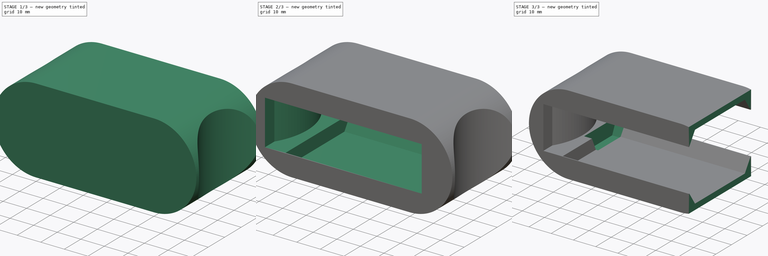
[diagram: build sequence overview — one tinted view per stage of 3, left to right]
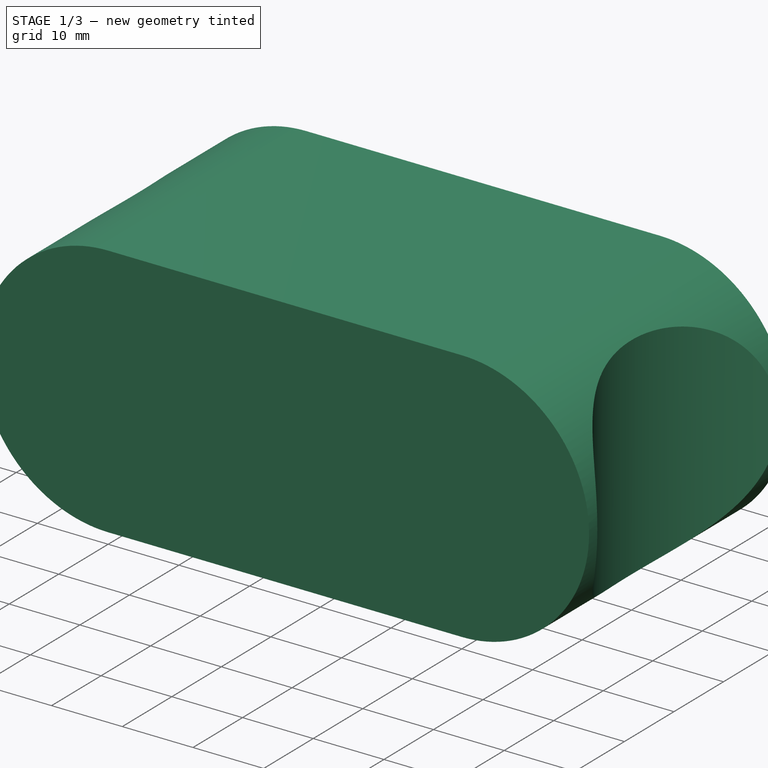
[diagram: stage 1 of 3 — iso view after this stage's code; geometry added in this stage tinted green]
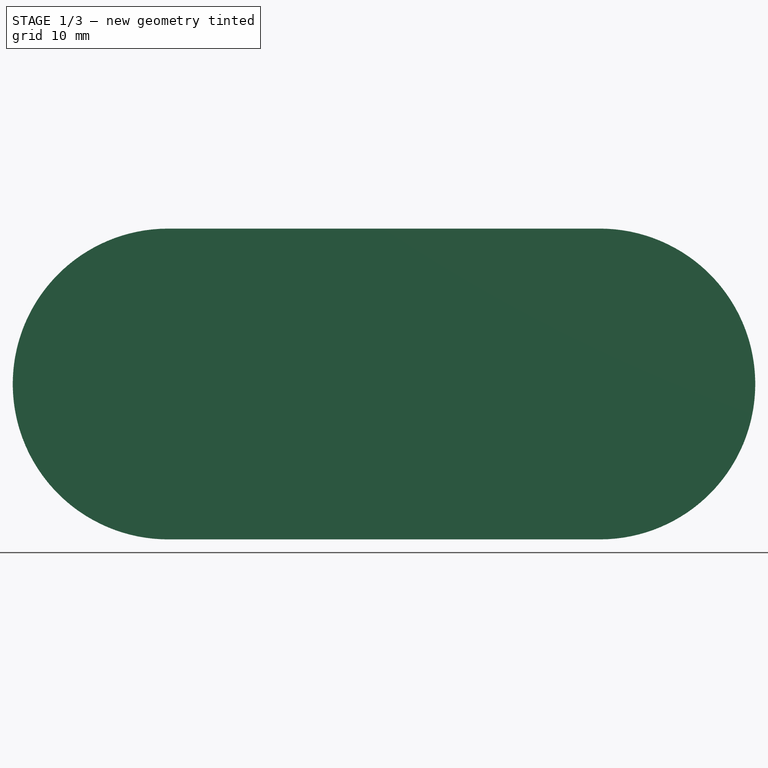
[diagram: stage 1 of 3 — front view after this stage's code; geometry added in this stage tinted green]
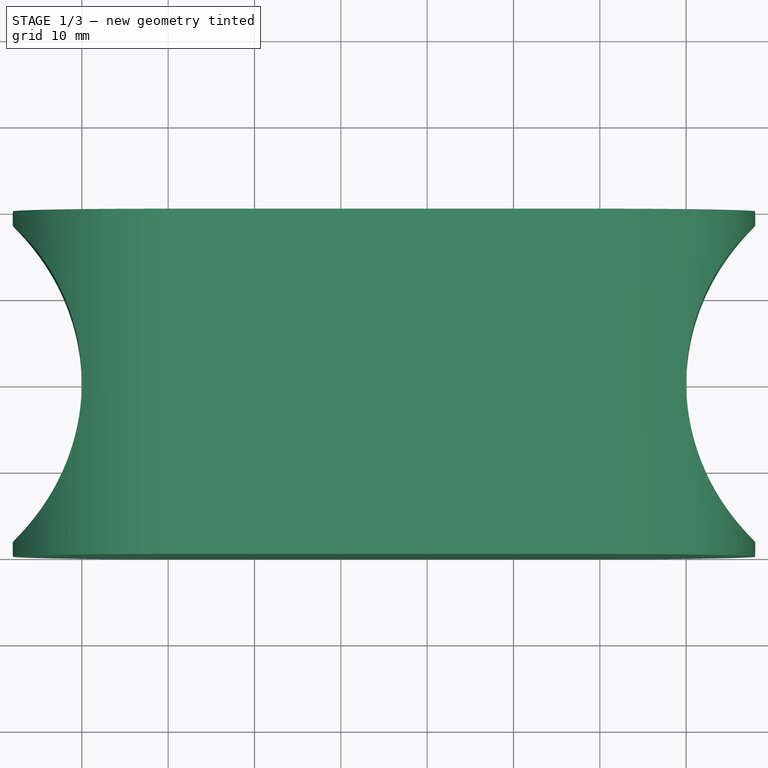
[diagram: stage 1 of 3 — top view after this stage's code; geometry added in this stage tinted green]
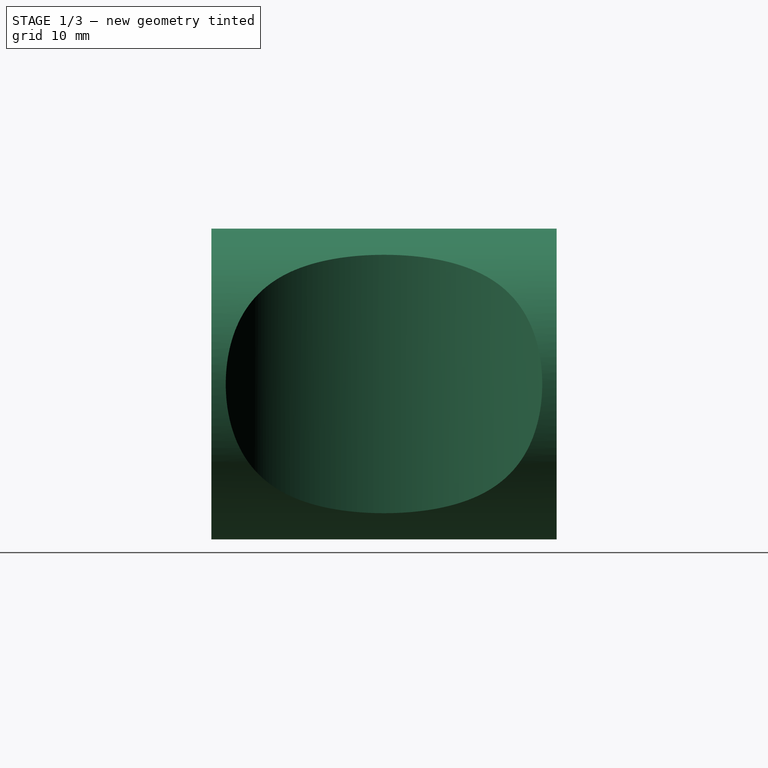
[diagram: stage 1 of 3 — right view after this stage's code; geometry added in this stage tinted green]
FCSTD DOCUMENT  (FreeCAD 0.21R33668 +7 (Git))
Label: robot-body
License: All rights reserved
LicenseURL: https://en.wikipedia.org/wiki/All_rights_reserved
objects: Sketcher::SketchObject×7, PartDesign::Pocket×5, PartDesign::Plane×3, PartDesign::Pad×1, PartDesign::Body×1
note: 23 computed .brp shape members not serialized (recipe doc carries the construction recipe); baked Part::Feature solids carry a one-line shape summary decoded from their .brp

FEATURE [Sketcher::SketchObject] Sketch
  FullyConstrained = true
  MapMode = 5
  Placement = pos=(0,0,0) rot=(1,0,0;1.5708rad)
  Support = -> [XZ_Plane]
  sketch-geometry (4):
    g0: ArcOfCircle CenterX=0 CenterY=0 CenterZ=0 NormalX=0 NormalY=0 NormalZ=1 AngleXU=0 Radius=18 StartAngle=1.5708 EndAngle=4.71239
    g1: ArcOfCircle CenterX=50 CenterY=0 CenterZ=0 NormalX=0 NormalY=0 NormalZ=1 AngleXU=0 Radius=18 StartAngle=4.71239 EndAngle=7.85398
    g2: LineSegment StartX=1.1e-15 StartY=18 StartZ=0 EndX=50 EndY=18 EndZ=0
    g3: LineSegment StartX=0 StartY=-18 StartZ=0 EndX=50 EndY=-18 EndZ=0
  constraints (9):
    c: Coincident(g0,g-1)
    c: PointOnObject(g0,g-2)
    c: PointOnObject(g1,g-1)
    c: Tangent(g3,g0) = -1.5708
    c: Tangent(g2,g0) = 1.5708
    c: Tangent(g2,g1) = 1.5708
    c: Tangent(g3,g1) = -1.5708
    c: DistanceX(g0,g1) = 50
    c: Diameter(g0) = 36
FEATURE [PartDesign::Pad] Pad
  Direction = (0,-1,-2e-16)
  Length = 40
  Length2 = 10
  Midplane = true
  Placement = pos=(0,0,0) rot=(1,0,0;1.5708rad)
  Profile = -> Sketch
  ReferenceAxis = -> Sketch [N_Axis]
  Type = 0
FEATURE [Sketcher::SketchObject] Sketch001
  FullyConstrained = true
  MapMode = 5
  Support = -> [XY_Plane]
  sketch-geometry (2):
    g0: Circle CenterX=-35 CenterY=0 CenterZ=0 NormalX=0 NormalY=0 NormalZ=1 AngleXU=0 Radius=25
    g1: Circle CenterX=85 CenterY=0 CenterZ=0 NormalX=0 NormalY=0 NormalZ=1 AngleXU=0 Radius=25
  constraints (6):
    c: PointOnObject(g0,g-1)
    c: PointOnObject(g1,g-1)
    c: Equal(g1,g0)
    c: DistanceX(g0,g-1) = 35
    c: DistanceX(g-1,g1) = 85
    c: Diameter(g0) = 50
FEATURE [PartDesign::Pocket] Pocket
  BaseFeature = -> Pad
  Direction = (0,0,-1)
  Length = 5
  Length2 = 5
  Midplane = true
  Placement = pos=(0,0,0) rot=(1,0,0;1.5708rad)
  Profile = -> Sketch001
  ReferenceAxis = -> Sketch001 [N_Axis]
  Type = 1
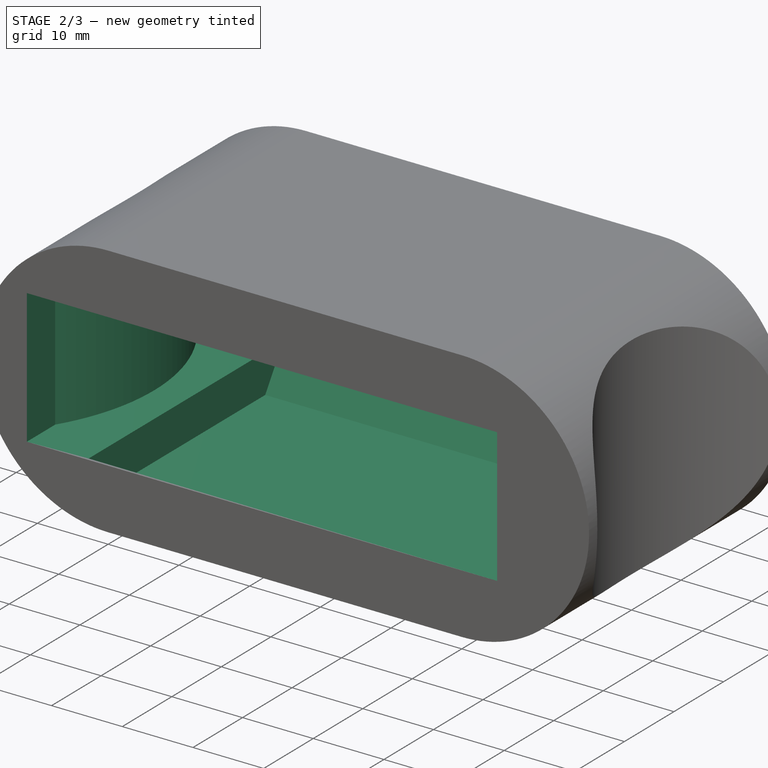
[diagram: stage 2 of 3 — iso view after this stage's code; geometry added in this stage tinted green]
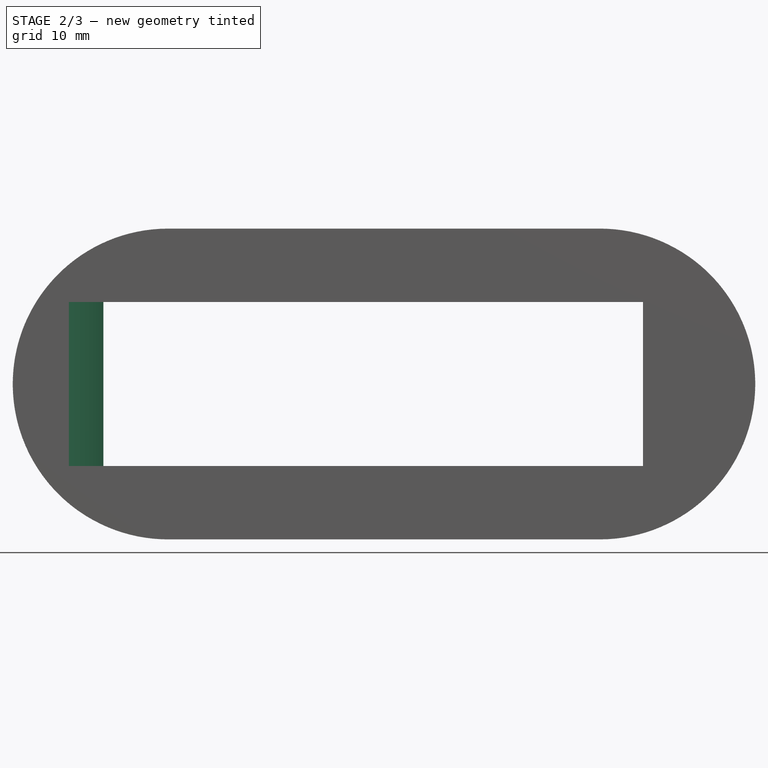
[diagram: stage 2 of 3 — front view after this stage's code; geometry added in this stage tinted green]
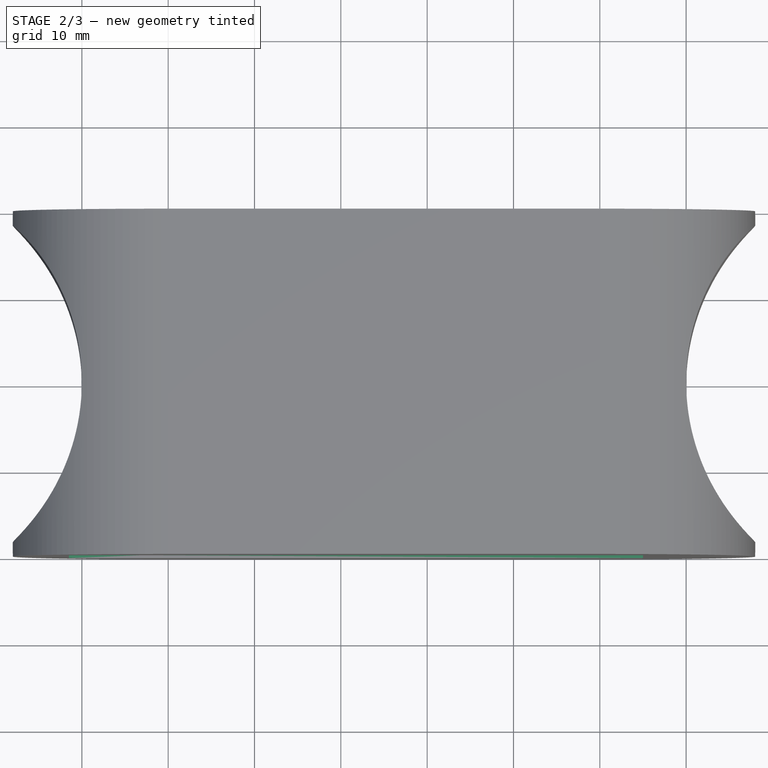
[diagram: stage 2 of 3 — top view after this stage's code; geometry added in this stage tinted green]
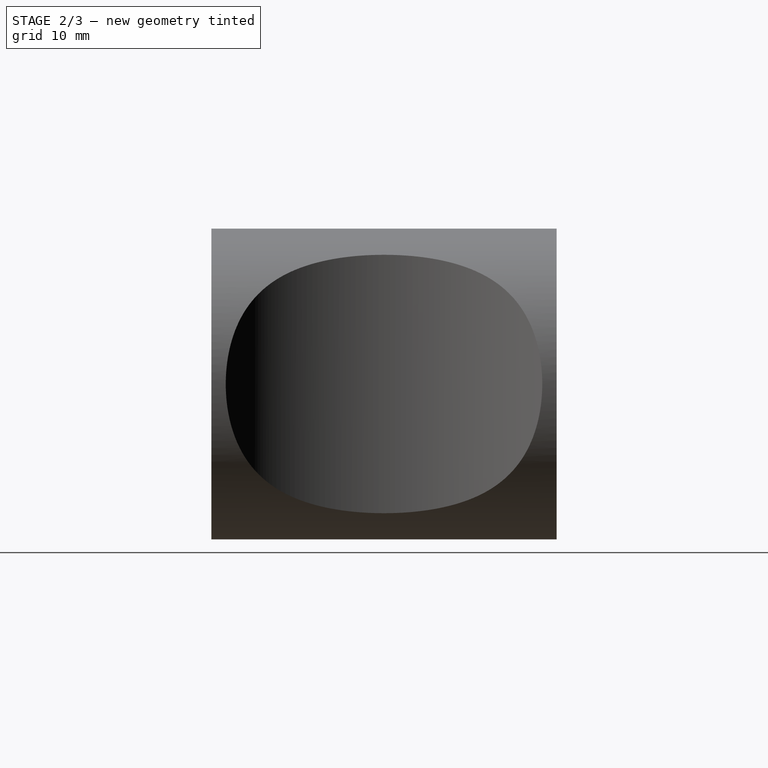
[diagram: stage 2 of 3 — right view after this stage's code; geometry added in this stage tinted green]
FEATURE [PartDesign::Plane] DatumPlane
  Length = 106.638
  MapMode = 5
  ResizeMode = 0
  Support = -> [XY_Plane]
  Width = 63.6382
FEATURE [Sketcher::SketchObject] Sketch002
  FullyConstrained = true
  MapMode = 5
  Support = -> [DatumPlane]
  sketch-geometry (7):
    g0: ArcOfCircle CenterX=-35 CenterY=0 CenterZ=0 NormalX=0 NormalY=0 NormalZ=1 AngleXU=0 Radius=27.5 StartAngle=5.73706 EndAngle=6.82931
    g1: LineSegment StartX=-11.5 StartY=20 StartZ=0 EndX=55 EndY=20 EndZ=0
    g2: LineSegment StartX=-11.5 StartY=-20 StartZ=0 EndX=55 EndY=-20 EndZ=0
    g3: LineSegment StartX=-11.5 StartY=20 StartZ=0 EndX=-11.5 EndY=14.2829 EndZ=0
    g4: LineSegment StartX=-11.5 StartY=-14.2829 StartZ=0 EndX=-11.5 EndY=-20 EndZ=0
    g5: LineSegment StartX=55 StartY=20 StartZ=0 EndX=55 EndY=-20 EndZ=0
    g6: LineSegment StartX=-7.5 StartY=20 StartZ=0 EndX=-7.5 EndY=-20 EndZ=0
  constraints (23):
    c: PointOnObject(g0,g-1)
    c: Horizontal(g1)
    c: Horizontal(g2)
    c: Coincident(g3,g1)
    c: Coincident(g3,g0)
    c: Vertical(g3)
    c: Coincident(g4,g0)
    c: Coincident(g4,g2)
    c: Vertical(g4)
    c: Coincident(g5,g1)
    c: Coincident(g5,g2)
    c: Vertical(g5)
    c: Equal(g3,g4)
    c: DistanceY(g2,g1) = 40
    c: DistanceX(g-1,g1) = 55
    c: PointOnObject(g6,g1)
    c: PointOnObject(g6,g2)
    c: Vertical(g6)
    c: Tangent(g6,g0)
    c: DistanceX(g1,g6) = 4
    c: Equal(g2,g1)
    c: Radius(g0) = 27.5
    c: DistanceX(g0,g-1) = 35
FEATURE [PartDesign::Pocket] Pocket001
  BaseFeature = -> Pocket
  Direction = (0,0,-1)
  Length = 19
  Length2 = 5
  Midplane = true
  Placement = pos=(0,0,0) rot=(1,0,0;1.5708rad)
  Profile = -> Sketch002
  ReferenceAxis = -> Sketch002 [N_Axis]
  Type = 0
FEATURE [PartDesign::Plane] DatumPlane001
  Length = 60
  MapMode = 5
  Placement = pos=(0,0,0) rot=(0.57735,0.57735,0.57735;2.0944rad)
  ResizeMode = 0
  Support = -> [YZ_Plane]
  Width = 60
FEATURE [Sketcher::SketchObject] Sketch003
  FullyConstrained = true
  MapMode = 5
  Placement = pos=(0,0,0) rot=(0.57735,0.57735,0.57735;2.0944rad)
  Support = -> [DatumPlane001]
  sketch-geometry (12):
    g0: LineSegment StartX=-20 StartY=9 StartZ=0 EndX=-16 EndY=15 EndZ=0
    g1: LineSegment StartX=-16 StartY=15 StartZ=0 EndX=16 EndY=15 EndZ=0
    g2: LineSegment StartX=16 StartY=15 StartZ=0 EndX=20 EndY=9 EndZ=0
    g3: LineSegment StartX=20 StartY=9 StartZ=0 EndX=20 EndY=-9 EndZ=0
    g4: LineSegment StartX=20 StartY=-9 StartZ=0 EndX=16 EndY=-15 EndZ=0
    g5: LineSegment StartX=16 StartY=-15 StartZ=0 EndX=-16 EndY=-15 EndZ=0
    g6: LineSegment StartX=-16 StartY=-15 StartZ=0 EndX=-20 EndY=-9 EndZ=0
    g7: LineSegment StartX=-20 StartY=-9 StartZ=0 EndX=-20 EndY=9 EndZ=0
    g8: LineSegment StartX=-16 StartY=15 StartZ=0 EndX=-16 EndY=-15 EndZ=0
    g9: LineSegment StartX=16 StartY=15 StartZ=0 EndX=16 EndY=-15 EndZ=0
    g10: LineSegment StartX=-20 StartY=9 StartZ=0 EndX=20 EndY=9 EndZ=0
    g11: LineSegment StartX=-20 StartY=-9 StartZ=0 EndX=20 EndY=-9 EndZ=0
  constraints (30):
    c: Coincident(g0,g1)
    c: Horizontal(g1)
    c: Coincident(g1,g2)
    c: Coincident(g2,g3)
    c: Vertical(g3)
    c: Coincident(g3,g4)
    c: Coincident(g4,g5)
    c: Horizontal(g5)
    c: Coincident(g5,g6)
    c: Coincident(g6,g7)
    c: Coincident(g7,g0)
    c: Vertical(g7)
    c: Coincident(g8,g0)
    c: Coincident(g8,g5)
    c: Vertical(g8)
    c: Coincident(g9,g1)
    c: Coincident(g9,g4)
    c: Vertical(g9)
    c: Coincident(g10,g0)
    c: Coincident(g10,g2)
    c: Horizontal(g10)
    c: Coincident(g11,g6)
    c: Coincident(g11,g3)
    c: Horizontal(g11)
    c: DistanceX(g10,g10) = 40
    c: Symmetric(g0,g3,g-1)
    c: Symmetric(g1,g5,g-1)
    c: DistanceY(g4,g1) = 30
    c: DistanceX(g5,g5) = 32
    c: DistanceY(g3,g3) = 18
FEATURE [PartDesign::Pocket] Pocket002
  BaseFeature = -> Pocket001
  Direction = (-1,1e-16,-1e-16)
  Length = 3
  Length2 = 55
  Placement = pos=(0,0,0) rot=(1,0,0;1.5708rad)
  Profile = -> Sketch003
  ReferenceAxis = -> Sketch003 [N_Axis]
  Type = 4
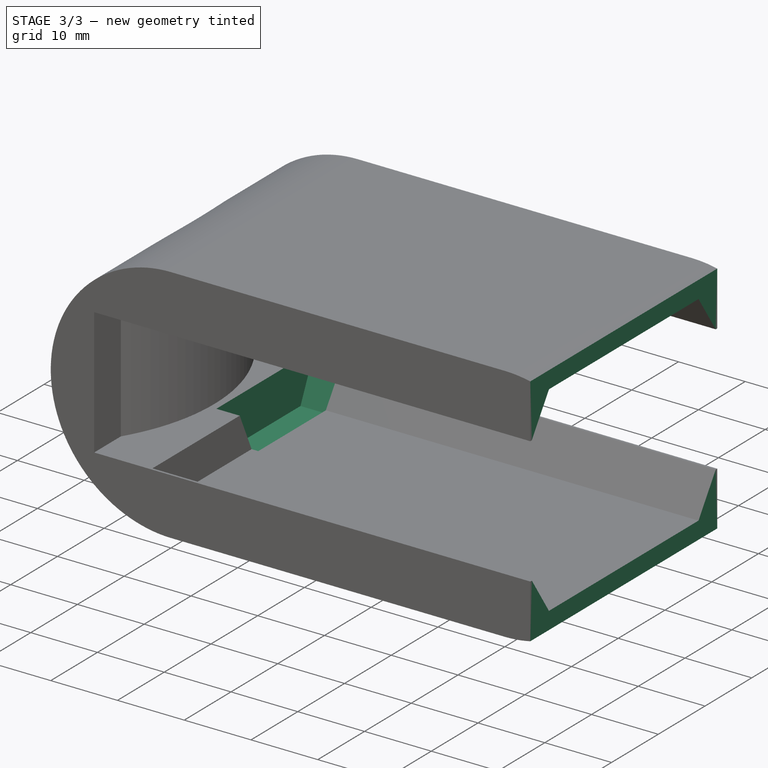
[diagram: stage 3 of 3 — iso view after this stage's code; geometry added in this stage tinted green]
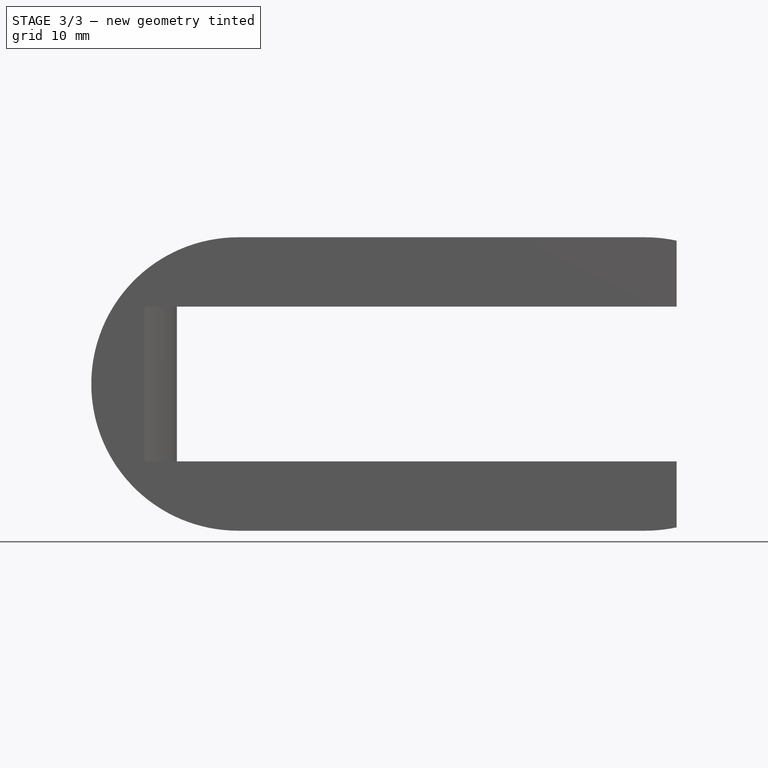
[diagram: stage 3 of 3 — front view after this stage's code; geometry added in this stage tinted green]
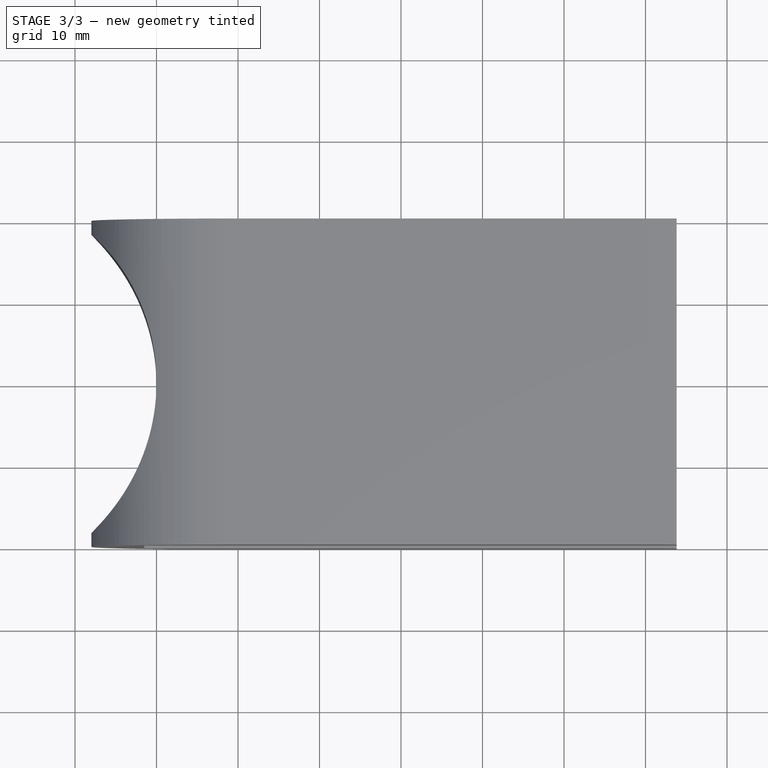
[diagram: stage 3 of 3 — top view after this stage's code; geometry added in this stage tinted green]
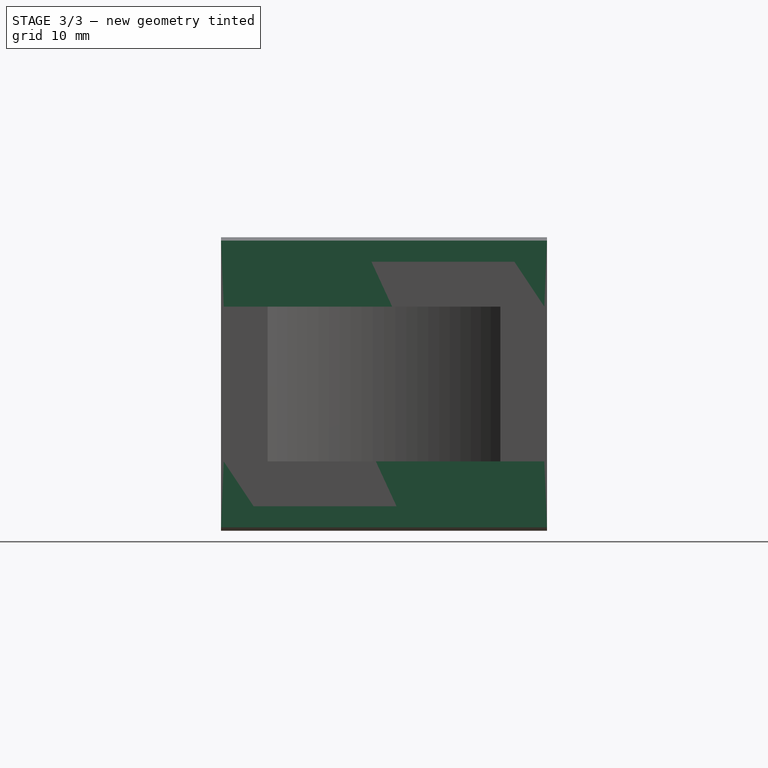
[diagram: stage 3 of 3 — right view after this stage's code; geometry added in this stage tinted green]
FEATURE [Sketcher::SketchObject] Sketch004
  FullyConstrained = true
  MapMode = 5
  Placement = pos=(0,0,0) rot=(0.57735,0.57735,0.57735;2.0944rad)
  Support = -> [DatumPlane001]
FEATURE [PartDesign::Plane] DatumPlane002
  AttachmentOffset = pos=(0,0,-2) rot=(0,0,1;0rad)
  Length = 60
  MapMode = 5
  Placement = pos=(-2,2e-16,-2e-16) rot=(0.57735,0.57735,0.57735;2.0944rad)
  ResizeMode = 0
  Support = -> [DatumPlane001]
  Width = 60
FEATURE [Sketcher::SketchObject] Sketch005
  FullyConstrained = true
  MapMode = 5
  Placement = pos=(-2,2e-16,-2e-16) rot=(0.57735,0.57735,0.57735;2.0944rad)
  Support = -> [DatumPlane002]
  sketch-geometry (8):
    g0: LineSegment StartX=-17 StartY=16 StartZ=0 EndX=-2 EndY=16 EndZ=0
    g1: LineSegment StartX=-2 StartY=16 StartZ=0 EndX=1 EndY=9.5 EndZ=0
    g2: LineSegment StartX=1 StartY=9.5 StartZ=0 EndX=-20 EndY=9.5 EndZ=0
    g3: LineSegment StartX=-20 StartY=9.5 StartZ=0 EndX=-17 EndY=16 EndZ=0
    g4: LineSegment StartX=-1 StartY=-9.5 StartZ=0 EndX=20 EndY=-9.5 EndZ=0
    g5: LineSegment StartX=20 StartY=-9.5 StartZ=0 EndX=17 EndY=-16 EndZ=0
    g6: LineSegment StartX=17 StartY=-16 StartZ=0 EndX=2 EndY=-16 EndZ=0
    g7: LineSegment StartX=2 StartY=-16 StartZ=0 EndX=-1 EndY=-9.5 EndZ=0
  constraints (22):
    c: Coincident(g0,g1)
    c: Coincident(g1,g2)
    c: Coincident(g2,g3)
    c: Coincident(g3,g0)
    c: Horizontal(g0)
    c: Horizontal(g2)
    c: DistanceY(g-1,g1) = 9.5
    c: DistanceY(g1,g1) = 6.5
    c: Coincident(g4,g5)
    c: Coincident(g5,g6)
    c: Coincident(g6,g7)
    c: Coincident(g7,g4)
    c: Horizontal(g4)
    c: Horizontal(g6)
    c: Symmetric(g4,g1,g-1)
    c: Symmetric(g5,g0,g-1)
    c: DistanceX(g0,g-1) = 17
    c: DistanceX(g2,g-1) = 20
    c: DistanceX(g0,g-1) = 2
    c: Equal(g1,g3)
    c: Equal(g7,g5)
    c: Equal(g5,g1)
FEATURE [PartDesign::Pocket] Pocket003
  BaseFeature = -> Pocket002
  Direction = (-1,0,0)
  Length = 4.5
  Length2 = 5
  Placement = pos=(0,0,0) rot=(1,0,0;1.5708rad)
  Profile = -> Sketch005
  ReferenceAxis = -> Sketch005 [N_Axis]
  Type = 0
FEATURE [Sketcher::SketchObject] Sketch006
  FullyConstrained = false
  MapMode = 5
  Placement = pos=(0,0,0) rot=(1,0,0;1.5708rad)
  Support = -> [XZ_Plane]
  sketch-geometry (4):
    g0: LineSegment StartX=53.8225 StartY=25.8556 StartZ=0 EndX=83.8227 EndY=25.8556 EndZ=0
    g1: LineSegment StartX=83.8227 StartY=25.8556 StartZ=0 EndX=83.8227 EndY=-24.1322 EndZ=0
    g2: LineSegment StartX=83.8227 StartY=-24.1322 StartZ=0 EndX=53.8225 EndY=-24.1322 EndZ=0
    g3: LineSegment StartX=53.8225 StartY=-24.1322 StartZ=0 EndX=53.8225 EndY=25.8556 EndZ=0
  constraints (8):
    c: Coincident(g0,g1)
    c: Coincident(g1,g2)
    c: Coincident(g2,g3)
    c: Coincident(g3,g0)
    c: Horizontal(g0)
    c: Horizontal(g2)
    c: Vertical(g1)
    c: Vertical(g3)
FEATURE [PartDesign::Pocket] Pocket004
  BaseFeature = -> Pocket003
  Direction = (0,1,2e-16)
  Length = 5
  Length2 = 5
  Midplane = true
  Placement = pos=(0,0,0) rot=(1,0,0;1.5708rad)
  Profile = -> Sketch006
  ReferenceAxis = -> Sketch006 [N_Axis]
  Type = 1
FEATURE [PartDesign::Body] Body  label="body-main"
  Group = -> [Sketch,Pad,Sketch001,Pocket,DatumPlane,Sketch002,Pocket001,DatumPlane001,Sketch003,Pocket002,Sketch004,DatumPlane002,Sketch005,Pocket003,Sketch006,Pocket004]
  Origin = -> Origin
  Tip = -> Pocket004
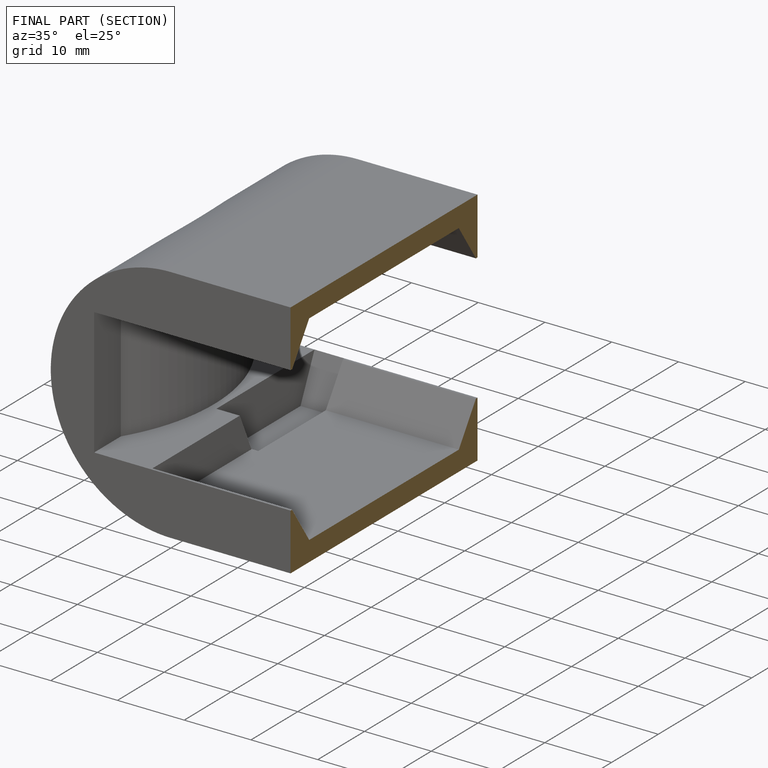
[diagram: finished part — half-section view (interior)]
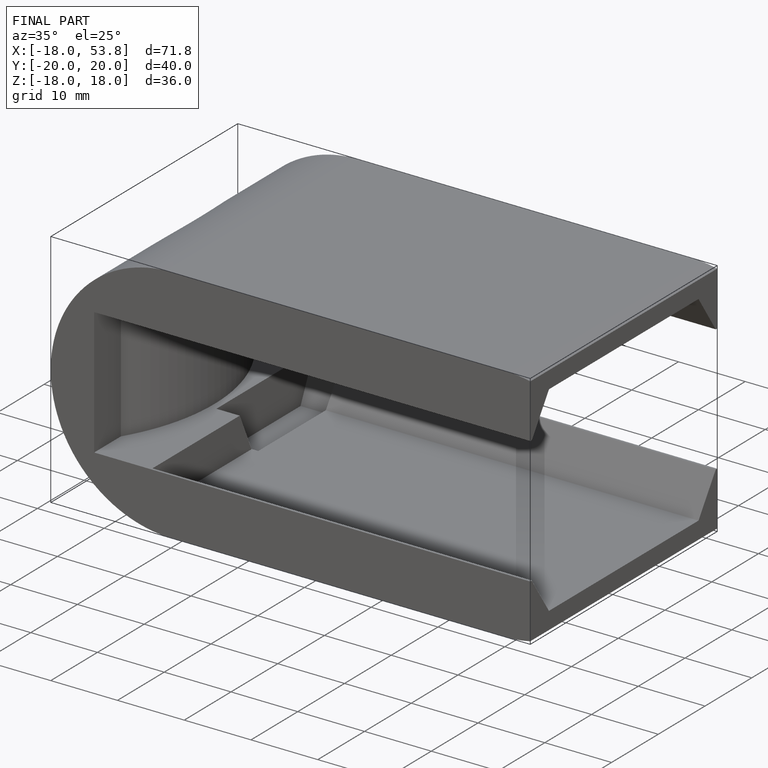
[diagram: finished part — iso view with bounding-box wireframe]
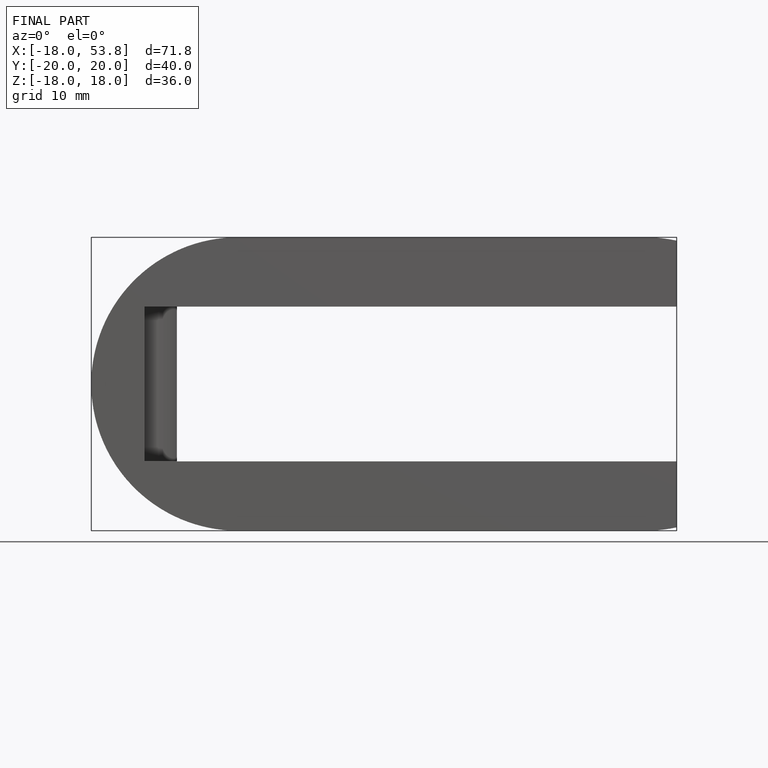
[diagram: finished part — front view with bounding-box wireframe]
